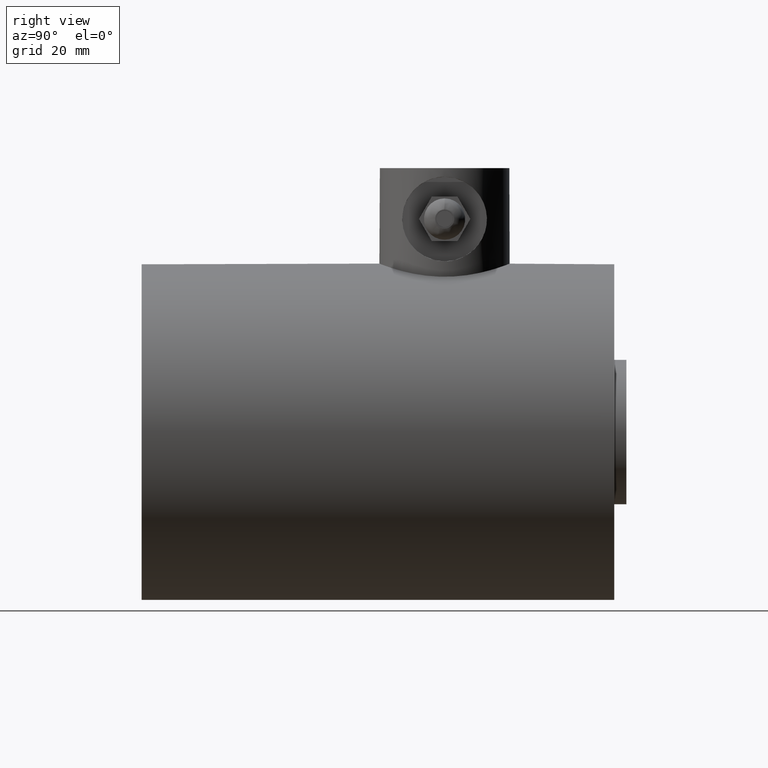
[diagram: clean part render]
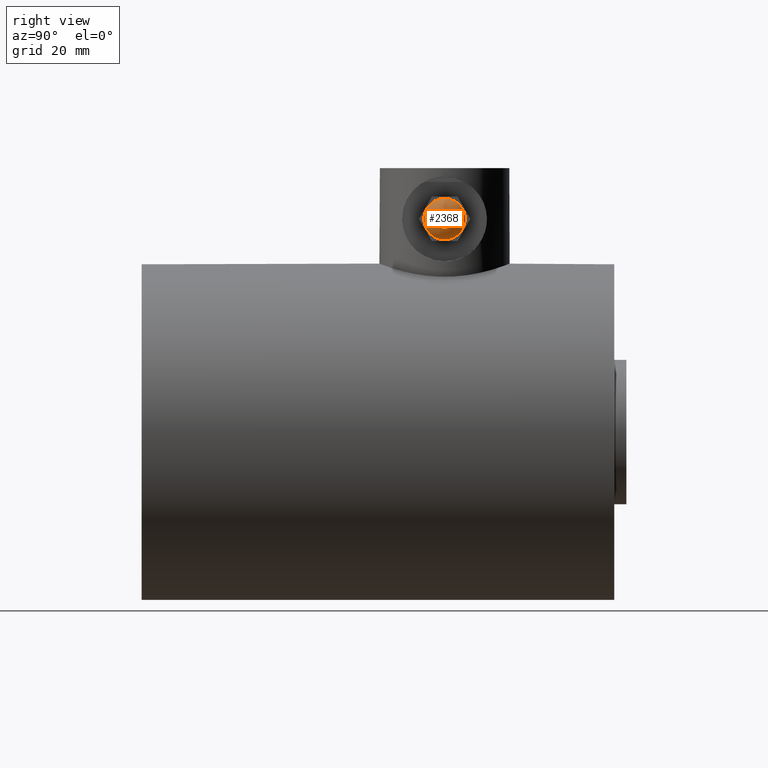
[diagram: same view with one face highlighted and labeled with its STEP entity id]
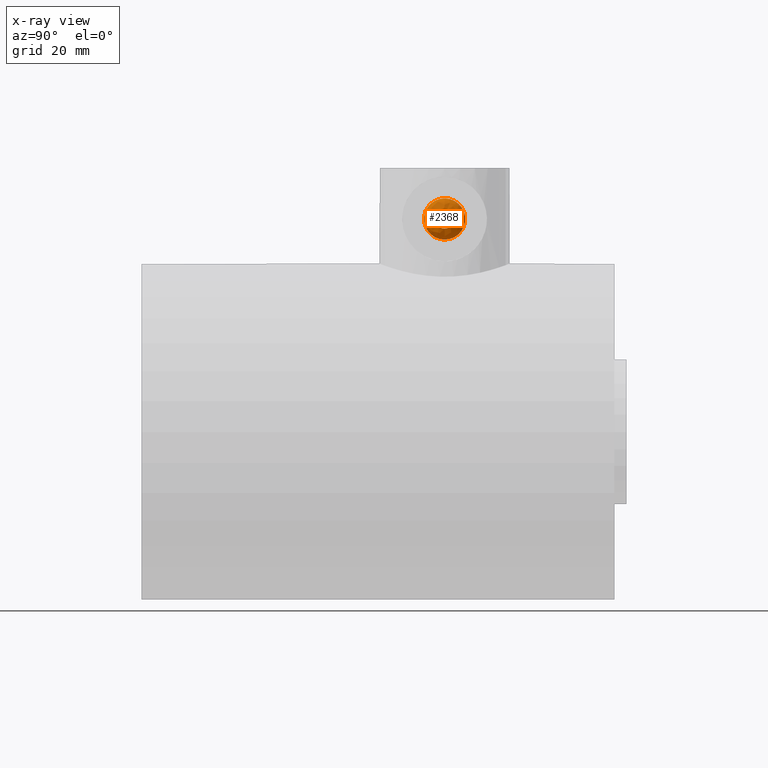
[diagram: x-ray of the same camera — body ghosted, the highlighted face saturated]
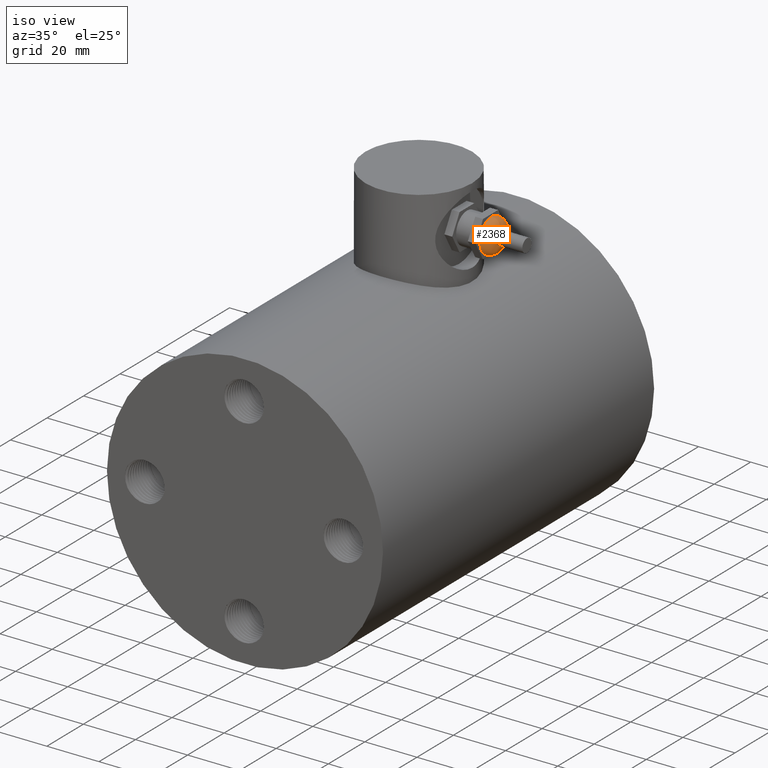
[diagram: same view with one face highlighted and labeled with its STEP entity id]
A machine part, right view. The second image highlights one B-rep face of the part: STEP entity #2368.
The next image is the same camera in x-ray: the body ghosted, the highlighted face saturated — about 0% of this face is hidden behind the body in this view.
A second angle (iso view) of the same face is appended — the face is thin or edge-on in the first view.
In plain terms, the highlighted face is a freeform B-spline surface patch.
Its self-contained STEP definition (entity closure, byte-faithful):
#233=(
BOUNDED_SURFACE()
B_SPLINE_SURFACE(2,2,((#3259,#3260,#3261,#3262,#3263,#3264,#3265,#3266,
#3267),(#3268,#3269,#3270,#3271,#3272,#3273,#3274,#3275,#3276),(#3277,#3278,
#3279,#3280,#3281,#3282,#3283,#3284,#3285)),.UNSPECIFIED.,.F.,.T.,.F.)
B_SPLINE_SURFACE_WITH_KNOTS((3,3),(3,2,2,2,3),(0.,1.5707963267949),(-3.14159265358979,
-1.5707963267949,0.,1.5707963267949,3.14159265358979),.UNSPECIFIED.)
GEOMETRIC_REPRESENTATION_ITEM()
RATIONAL_B_SPLINE_SURFACE(((1.,0.707106781186548,1.,0.707106781186548,1.,
0.707106781186548,1.,0.707106781186548,1.),(0.707106781186547,0.499999999999999,
0.707106781186547,0.499999999999999,0.707106781186547,0.499999999999999,
0.707106781186547,0.499999999999999,0.707106781186547),(1.,0.707106781186548,
1.,0.707106781186548,1.,0.707106781186548,1.,0.707106781186548,1.)))
REPRESENTATION_ITEM('')
SURFACE()
);
#267=FACE_OUTER_BOUND('',#412,.T.);
#412=EDGE_LOOP('',(#1524,#1525,#1526,#1527));
#841=CIRCLE('',#2533,0.118110236220472);
#842=CIRCLE('',#2534,0.137795275590551);
#843=CIRCLE('',#2535,0.255905511811024);
#897=VERTEX_POINT('',#3286);
#898=VERTEX_POINT('',#3288);
#1146=EDGE_CURVE('',#897,#897,#841,.T.);
#1147=EDGE_CURVE('',#897,#898,#842,.T.);
#1148=EDGE_CURVE('',#898,#898,#843,.T.);
#1524=ORIENTED_EDGE('',*,*,#1146,.T.);
#1525=ORIENTED_EDGE('',*,*,#1147,.T.);
#1526=ORIENTED_EDGE('',*,*,#1148,.T.);
#1527=ORIENTED_EDGE('',*,*,#1147,.F.);
#2368=ADVANCED_FACE('',(#267),#233,.F.);
#2533=AXIS2_PLACEMENT_3D('',#3287,#2740,#2741);
#2534=AXIS2_PLACEMENT_3D('',#3289,#2742,#2743);
#2535=AXIS2_PLACEMENT_3D('',#3290,#2744,#2745);
#2740=DIRECTION('center_axis',(-1.,0.,0.));
#2741=DIRECTION('ref_axis',(0.,0.,-1.));
#2742=DIRECTION('center_axis',(0.,-1.,-1.22464679914735E-16));
#2743=DIRECTION('ref_axis',(0.,-1.22464679914735E-16,1.));
#2744=DIRECTION('center_axis',(1.,0.,0.));
#2745=DIRECTION('ref_axis',(0.,0.,-1.));
#3259=CARTESIAN_POINT('Ctrl Pts',(0.492125984251968,0.,0.255905511811024));
#3260=CARTESIAN_POINT('Ctrl Pts',(0.492125984251968,-0.255905511811024,
0.255905511811024));
#3261=CARTESIAN_POINT('Ctrl Pts',(0.492125984251968,-0.255905511811024,
0.));
#3262=CARTESIAN_POINT('Ctrl Pts',(0.492125984251968,-0.255905511811024,
-0.255905511811024));
#3263=CARTESIAN_POINT('Ctrl Pts',(0.492125984251968,0.,-0.255905511811024));
#3264=CARTESIAN_POINT('Ctrl Pts',(0.492125984251968,0.255905511811024,-0.255905511811024));
#3265=CARTESIAN_POINT('Ctrl Pts',(0.492125984251968,0.255905511811024,0.));
#3266=CARTESIAN_POINT('Ctrl Pts',(0.492125984251968,0.255905511811024,0.255905511811024));
#3267=CARTESIAN_POINT('Ctrl Pts',(0.492125984251968,0.,0.255905511811024));
#3268=CARTESIAN_POINT('Ctrl Pts',(0.62992125984252,0.,0.255905511811024));
#3269=CARTESIAN_POINT('Ctrl Pts',(0.62992125984252,-0.255905511811024,0.255905511811024));
#3270=CARTESIAN_POINT('Ctrl Pts',(0.62992125984252,-0.255905511811024,0.));
#3271=CARTESIAN_POINT('Ctrl Pts',(0.62992125984252,-0.255905511811024,-0.255905511811024));
#3272=CARTESIAN_POINT('Ctrl Pts',(0.62992125984252,0.,-0.255905511811024));
#3273=CARTESIAN_POINT('Ctrl Pts',(0.62992125984252,0.255905511811024,-0.255905511811024));
#3274=CARTESIAN_POINT('Ctrl Pts',(0.62992125984252,0.255905511811024,0.));
#3275=CARTESIAN_POINT('Ctrl Pts',(0.62992125984252,0.255905511811024,0.255905511811024));
#3276=CARTESIAN_POINT('Ctrl Pts',(0.62992125984252,0.,0.255905511811024));
#3277=CARTESIAN_POINT('Ctrl Pts',(0.62992125984252,0.,0.118110236220472));
#3278=CARTESIAN_POINT('Ctrl Pts',(0.62992125984252,-0.118110236220472,0.118110236220472));
#3279=CARTESIAN_POINT('Ctrl Pts',(0.62992125984252,-0.118110236220472,0.));
#3280=CARTESIAN_POINT('Ctrl Pts',(0.62992125984252,-0.118110236220472,-0.118110236220472));
#3281=CARTESIAN_POINT('Ctrl Pts',(0.62992125984252,0.,-0.118110236220472));
#3282=CARTESIAN_POINT('Ctrl Pts',(0.62992125984252,0.118110236220472,-0.118110236220472));
#3283=CARTESIAN_POINT('Ctrl Pts',(0.62992125984252,0.118110236220472,0.));
#3284=CARTESIAN_POINT('Ctrl Pts',(0.62992125984252,0.118110236220472,0.118110236220472));
#3285=CARTESIAN_POINT('Ctrl Pts',(0.62992125984252,0.,0.118110236220472));
#3286=CARTESIAN_POINT('',(0.62992125984252,1.44643322733939E-17,0.118110236220472));
#3287=CARTESIAN_POINT('Origin',(0.62992125984252,0.,0.));
#3288=CARTESIAN_POINT('',(0.492125984251968,-3.13393865923535E-17,0.255905511811024));
#3289=CARTESIAN_POINT('Origin',(0.492125984251968,-1.44643322733939E-17,
0.118110236220472));
#3290=CARTESIAN_POINT('Origin',(0.492125984251968,0.,0.));